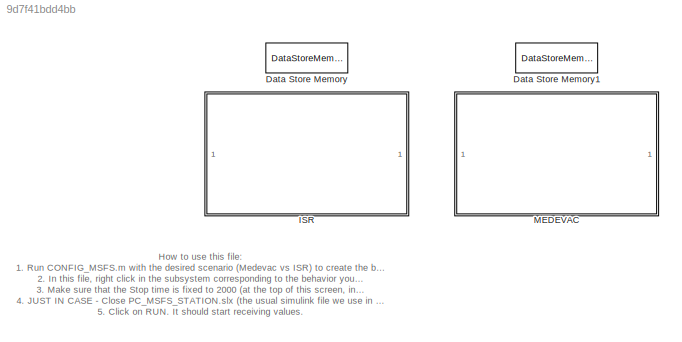
MODEL slx_9d7f41bdd4bb
KIND model
CONFIG AbsTol = auto
CONFIG EnableMultiTasking = off
CONFIG FixedStep = 0.03
CONFIG MaxStep = auto
CONFIG MinStep = auto
CONFIG RelTol = 1e-3
CONFIG SampleTimeConstraint = Unconstrained
CONFIG SolverName = FixedStepAuto
CONFIG StartTime = 0.0
CONFIG StopTime = inf
BLOCK [DataStoreMemory] Data Store Memory
  DataStoreName = MODEL
  InitialValue = MODEL_INI
  OutDataTypeStr = Bus: MODEL_Bus
  ReadBeforeWriteMsg = warning
  ShowAdditionalParam = off
  WriteAfterReadMsg = warning
  WriteAfterWriteMsg = warning
BLOCK [DataStoreMemory] Data Store Memory1
  DataStoreName = CONTROL
  InitialValue = CONTROL_INI
  OutDataTypeStr = Bus: CONTROL_Bus
  ReadBeforeWriteMsg = warning
  ShowAdditionalParam = off
  WriteAfterReadMsg = warning
  WriteAfterWriteMsg = warning
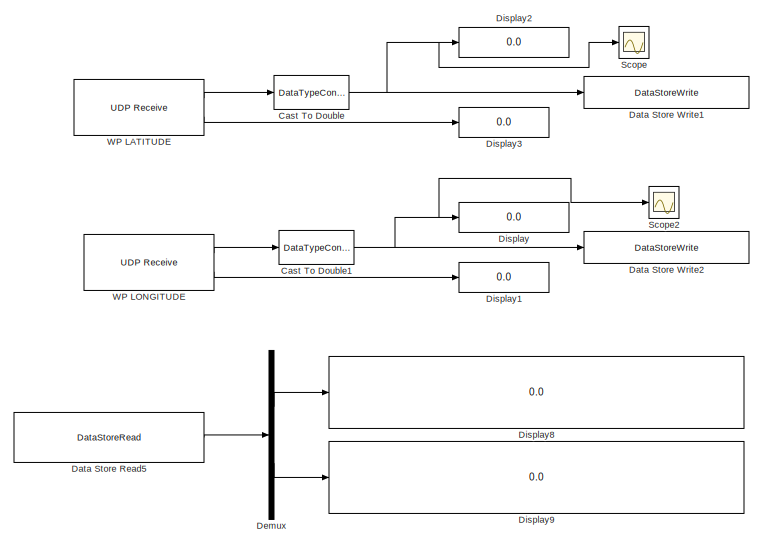
[diagram: ISR - part 1/3, top center region]
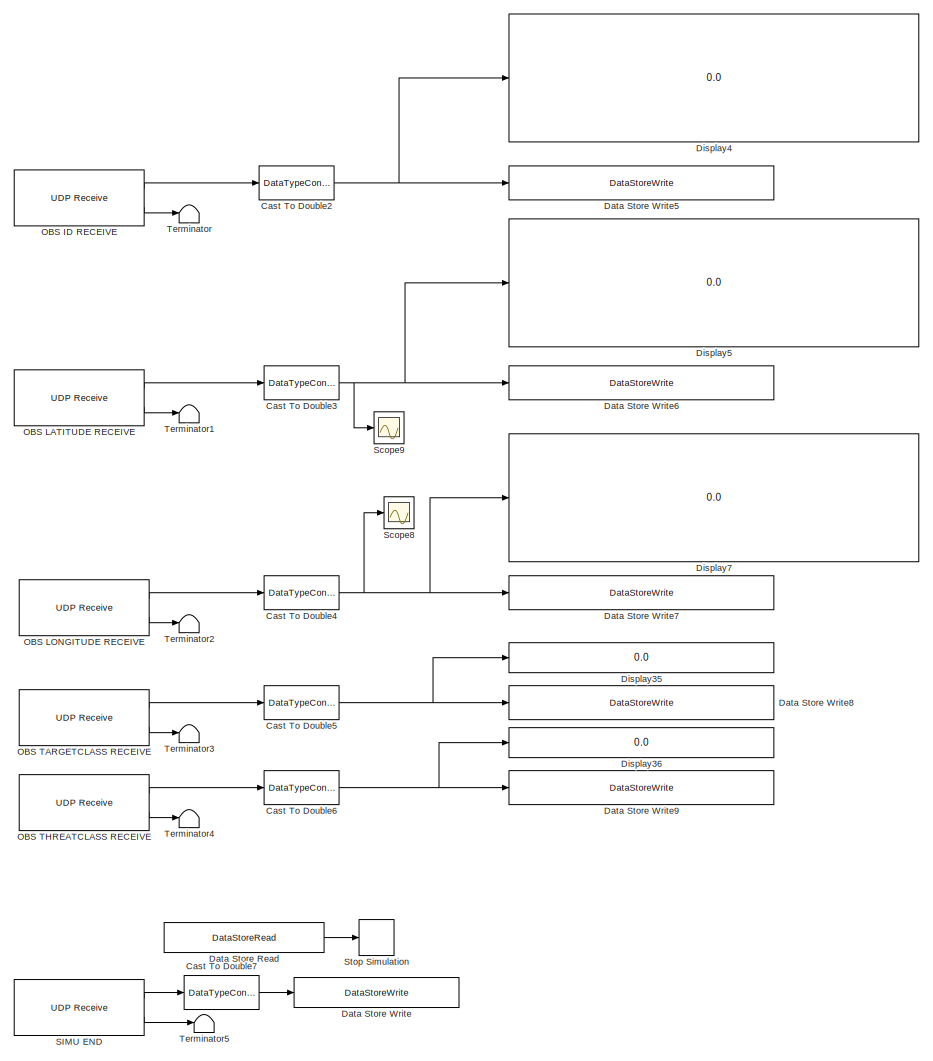
[diagram: ISR - part 2/3, left side, full height]
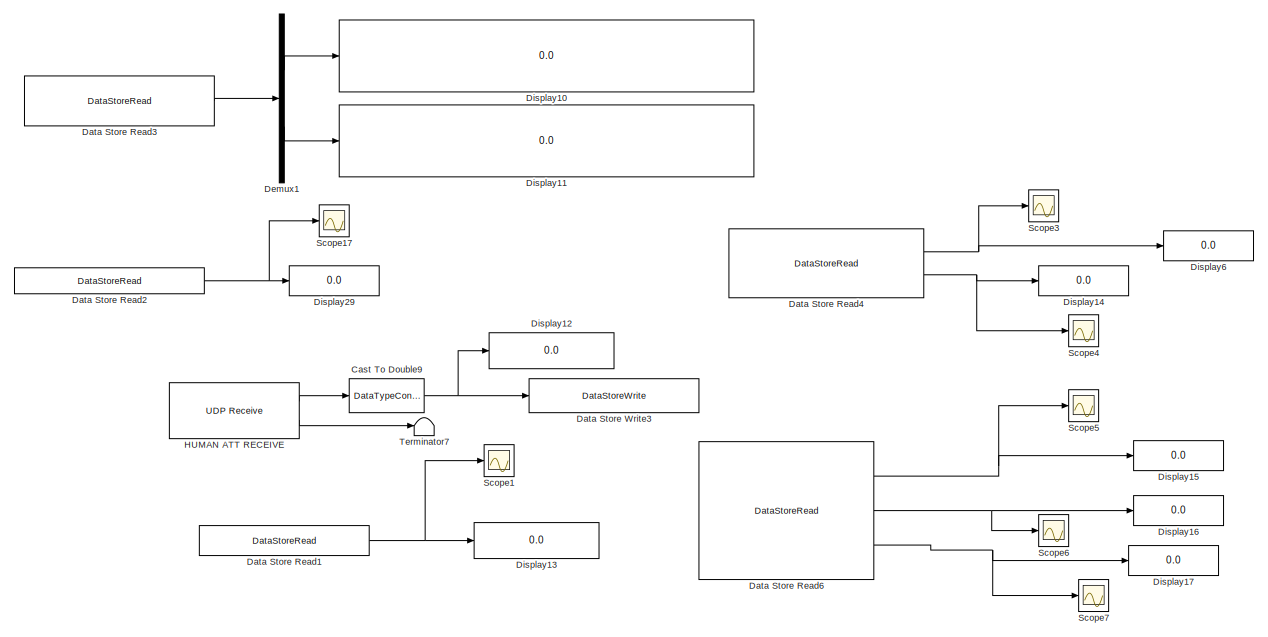
[diagram: ISR - part 3/3, bottom right region]
BLOCK [SubSystem] ISR
  Commented = on
  Ports = []
  RequestExecContextInheritance = off
BLOCK [DataTypeConversion] ISR/Cast To Double
  OutDataTypeStr = double
  RndMeth = Floor
  SaturateOnIntegerOverflow = off
BLOCK [DataTypeConversion] ISR/Cast To Double1
  OutDataTypeStr = double
  RndMeth = Floor
  SaturateOnIntegerOverflow = off
BLOCK [DataTypeConversion] ISR/Cast To Double2
  OutDataTypeStr = double
  RndMeth = Floor
  SaturateOnIntegerOverflow = off
BLOCK [DataTypeConversion] ISR/Cast To Double3
  OutDataTypeStr = double
  RndMeth = Floor
  SaturateOnIntegerOverflow = off
BLOCK [DataTypeConversion] ISR/Cast To Double4
  OutDataTypeStr = double
  RndMeth = Floor
  SaturateOnIntegerOverflow = off
BLOCK [DataTypeConversion] ISR/Cast To Double5
  OutDataTypeStr = double
  RndMeth = Floor
  SaturateOnIntegerOverflow = off
BLOCK [DataTypeConversion] ISR/Cast To Double6
  OutDataTypeStr = double
  RndMeth = Floor
  SaturateOnIntegerOverflow = off
BLOCK [DataTypeConversion] ISR/Cast To Double7
  OutDataTypeStr = double
  RndMeth = Floor
  SaturateOnIntegerOverflow = off
BLOCK [DataTypeConversion] ISR/Cast To Double9
  OutDataTypeStr = double
  RndMeth = Floor
  SaturateOnIntegerOverflow = off
BLOCK [DataStoreRead] ISR/Data Store Read
  DataStoreElements = CONTROL.TARGET.SIMU_END
  DataStoreName = CONTROL
  IndexOptions = Index vector (dialog)
  Indices = 1
  OutputSizes = 1
  Ports = [0, 1]
BLOCK [DataStoreRead] ISR/Data Store Read1
  DataStoreElements = MODEL.STATE(8,1)
  DataStoreName = MODEL
  IndexOptions = Index vector (dialog)
  Indices = 1
  OutputSizes = 1
  Ports = [0, 1]
BLOCK [DataStoreRead] ISR/Data Store Read2
  DataStoreElements = CONTROL.PARAM.FLIGHT_STATUS
  DataStoreName = CONTROL
  IndexOptions = Index vector (dialog)
  Indices = 1
  OutputSizes = 1
  Ports = [0, 1]
BLOCK [DataStoreRead] ISR/Data Store Read3
  DataStoreElements = CONTROL.PARAM.CBF_PSI(:,:)
  DataStoreName = CONTROL
  IndexOptions = Index vector (dialog)
  Indices = 1
  OutputSizes = 1
  Ports = [0, 1]
BLOCK [DataStoreRead] ISR/Data Store Read4
  DataStoreElements = CONTROL.PARAM.CBF_CONST#CONTROL.PARAM.CBF_CONST_ATT
  DataStoreName = CONTROL
  IndexOptions = Index vector (dialog)
  Indices = 1
  OutputSizes = 1
  Ports = [0, 2]
BLOCK [DataStoreRead] ISR/Data Store Read5
  DataStoreElements = CONTROL.PARAM.CBF_H(:,:)
  DataStoreName = CONTROL
  IndexOptions = Index vector (dialog)
  Indices = 1
  OutputSizes = 1
  Ports = [0, 1]
BLOCK [DataStoreRead] ISR/Data Store Read6
  DataStoreElements = MODEL.AUX.ALPHA_DOT#MODEL.AUX.ALPHA#MODEL.AUX.PATH_FOLLOWED
  DataStoreName = MODEL
  IndexOptions = Index vector (dialog)
  Indices = 1
  OutputSizes = 1
  Ports = [0, 3]
BLOCK [DataStoreWrite] ISR/Data Store Write
  DataStoreElements = CONTROL.TARGET.SIMU_END
  DataStoreName = CONTROL
  IndexOptions = Index vector (dialog)
  Indices = 1
  OutputSizes = 1
  Ports = [1]
BLOCK [DataStoreWrite] ISR/Data Store Write1
  DataStoreElements = CONTROL.TARGET.LATITUDE
  DataStoreName = CONTROL
  IndexOptions = Index vector (dialog)
  Indices = 1
  OutputSizes = 1
  Ports = [1]
BLOCK [DataStoreWrite] ISR/Data Store Write2
  DataStoreElements = CONTROL.TARGET.LONGITUDE
  DataStoreName = CONTROL
  IndexOptions = Index vector (dialog)
  Indices = 1
  OutputSizes = 1
  Ports = [1]
BLOCK [DataStoreWrite] ISR/Data Store Write3
  DataStoreElements = MODEL.INPUT.ATT_VALUE
  DataStoreName = MODEL
  IndexOptions = Index vector (dialog)
  Indices = 1
  OutputSizes = 1
  Ports = [1]
BLOCK [DataStoreWrite] ISR/Data Store Write5
  DataStoreElements = CONTROL.TARGET.OBSTACLE_ID(:,:)
  DataStoreName = CONTROL
  IndexOptions = Index vector (dialog)
  Indices = 1
  OutputSizes = 1
  Ports = [1]
BLOCK [DataStoreWrite] ISR/Data Store Write6
  DataStoreElements = CONTROL.TARGET.OBSTACLE_LATITUDE(:,:)
  DataStoreName = CONTROL
  IndexOptions = Index vector (dialog)
  Indices = 1
  OutputSizes = 1
  Ports = [1]
BLOCK [DataStoreWrite] ISR/Data Store Write7
  DataStoreElements = CONTROL.TARGET.OBSTACLE_LONGITUDE(:,:)
  DataStoreName = CONTROL
  IndexOptions = Index vector (dialog)
  Indices = 1
  OutputSizes = 1
  Ports = [1]
BLOCK [DataStoreWrite] ISR/Data Store Write8
  DataStoreElements = CONTROL.TARGET.OBSTACLE_TARGETCLASS(:,:)
  DataStoreName = CONTROL
  IndexOptions = Index vector (dialog)
  Indices = 1
  OutputSizes = 1
  Ports = [1]
BLOCK [DataStoreWrite] ISR/Data Store Write9
  DataStoreElements = CONTROL.TARGET.OBSTACLE_THREATCLASS(:,:)
  DataStoreName = CONTROL
  IndexOptions = Index vector (dialog)
  Indices = 1
  OutputSizes = 1
  Ports = [1]
BLOCK [Demux] ISR/Demux
  Outputs = 2
  Ports = [1, 2]
BLOCK [Demux] ISR/Demux1
  Outputs = 2
  Ports = [1, 2]
BLOCK [Display] ISR/Display
  Decimation = 1
  Format = long
  Ports = [1]
BLOCK [Display] ISR/Display1
  Decimation = 1
  Ports = [1]
BLOCK [Display] ISR/Display10
  Decimation = 1
  Ports = [1]
BLOCK [Display] ISR/Display11
  Decimation = 1
  Ports = [1]
BLOCK [Display] ISR/Display12
  Decimation = 1
  Ports = [1]
BLOCK [Display] ISR/Display13
  Decimation = 1
  Format = long
  Ports = [1]
BLOCK [Display] ISR/Display14
  Decimation = 1
  Ports = [1]
BLOCK [Display] ISR/Display15
  Decimation = 1
  Ports = [1]
BLOCK [Display] ISR/Display16
  Decimation = 1
  Ports = [1]
BLOCK [Display] ISR/Display17
  Decimation = 1
  Ports = [1]
BLOCK [Display] ISR/Display2
  Decimation = 1
  Format = long
  Ports = [1]
BLOCK [Display] ISR/Display29
  Decimation = 1
  Ports = [1]
BLOCK [Display] ISR/Display3
  Decimation = 1
  Ports = [1]
BLOCK [Display] ISR/Display35
  Decimation = 1
  Ports = [1]
BLOCK [Display] ISR/Display36
  Decimation = 1
  Ports = [1]
BLOCK [Display] ISR/Display4
  Decimation = 1
  Format = long
  Ports = [1]
BLOCK [Display] ISR/Display5
  Decimation = 1
  Format = long
  Ports = [1]
BLOCK [Display] ISR/Display6
  Decimation = 1
  Ports = [1]
BLOCK [Display] ISR/Display7
  Decimation = 1
  Format = long
  Ports = [1]
BLOCK [Display] ISR/Display8
  Decimation = 1
  Ports = [1]
BLOCK [Display] ISR/Display9
  Decimation = 1
  Ports = [1]
BLOCK [Reference] ISR/HUMAN ATT RECEIVE  REF=instrumentlib/UDP Receive
  Ports = [0, 2]
  SourceBlock = instrumentlib/UDP Receive
  SourceProductBaseCode = IC
  SourceType = UDP Receive
BLOCK [Reference] ISR/OBS ID RECEIVE  REF=instrumentlib/UDP Receive
  Ports = [0, 2]
  SourceBlock = instrumentlib/UDP Receive
  SourceProductBaseCode = IC
  SourceType = UDP Receive
BLOCK [Reference] ISR/OBS LATITUDE RECEIVE  REF=instrumentlib/UDP Receive
  Ports = [0, 2]
  SourceBlock = instrumentlib/UDP Receive
  SourceProductBaseCode = IC
  SourceType = UDP Receive
BLOCK [Reference] ISR/OBS LONGITUDE RECEIVE  REF=instrumentlib/UDP Receive
  Ports = [0, 2]
  SourceBlock = instrumentlib/UDP Receive
  SourceProductBaseCode = IC
  SourceType = UDP Receive
BLOCK [Reference] ISR/OBS TARGETCLASS RECEIVE  REF=instrumentlib/UDP Receive
  Ports = [0, 2]
  SourceBlock = instrumentlib/UDP Receive
  SourceProductBaseCode = IC
  SourceType = UDP Receive
BLOCK [Reference] ISR/OBS THREATCLASS RECEIVE  REF=instrumentlib/UDP Receive
  Ports = [0, 2]
  SourceBlock = instrumentlib/UDP Receive
  SourceProductBaseCode = IC
  SourceType = UDP Receive
BLOCK [Reference] ISR/SIMU END  REF=instrumentlib/UDP Receive
  Ports = [0, 2]
  SourceBlock = instrumentlib/UDP Receive
  SourceProductBaseCode = IC
  SourceType = UDP Receive
BLOCK [Scope] ISR/Scope
  Floating = off
  NumInputPorts = 1
  Ports = [1]
  ScopeSpecificationString = Simulink.scopes.TimeScopeBlockCfg('CurrentConfiguration', extmgr.ConfigurationSet(extmgr.Configuration('Core','General UI',true),extmgr.Configuration('Core','Source UI',true),extmgr.Configuration('Sources','WiredSimulink',true,'DataLoggingVariableName','ScopeData1'),extmgr.Configuration('Visuals','Time Domain',true),extmgr.Configuration('Tools','Plot Navigation',true),extmgr.Configuration('Tools',...<+40ch>
BLOCK [Scope] ISR/Scope1
  Floating = off
  NumInputPorts = 1
  Ports = [1]
  ScopeSpecificationString = Simulink.scopes.TimeScopeBlockCfg('CurrentConfiguration', extmgr.ConfigurationSet(extmgr.Configuration('Core','General UI',true),extmgr.Configuration('Core','Source UI',true),extmgr.Configuration('Sources','WiredSimulink',true,'DataLoggingVariableName','ScopeData2'),extmgr.Configuration('Visuals','Time Domain',true,'SerializedDisplays',{struct('MinYLimReal','-0.5','MaxYLimReal','4.5','YLabelReal',...<+1379ch>
BLOCK [Scope] ISR/Scope17
  Floating = off
  NumInputPorts = 1
  Ports = [1]
  ScopeSpecificationString = Simulink.scopes.TimeScopeBlockCfg('CurrentConfiguration', extmgr.ConfigurationSet(extmgr.Configuration('Core','General UI',true),extmgr.Configuration('Core','Source UI',true),extmgr.Configuration('Sources','WiredSimulink',true,'DataLoggingVariableName','ScopeData3'),extmgr.Configuration('Visuals','Time Domain',true,'SerializedDisplays',{struct('MinYLimReal','-0.25','MaxYLimReal','2.25','YLabelReal...<+1401ch>
BLOCK [Scope] ISR/Scope2
  Floating = off
  NumInputPorts = 1
  Ports = [1]
  ScopeSpecificationString = Simulink.scopes.TimeScopeBlockCfg('CurrentConfiguration', extmgr.ConfigurationSet(extmgr.Configuration('Core','General UI',true),extmgr.Configuration('Core','Source UI',true),extmgr.Configuration('Sources','WiredSimulink',true,'DataLoggingVariableName','ScopeData4'),extmgr.Configuration('Visuals','Time Domain',true),extmgr.Configuration('Tools','Plot Navigation',true),extmgr.Configuration('Tools',...<+40ch>
BLOCK [Scope] ISR/Scope3
  Floating = off
  NumInputPorts = 1
  Ports = [1]
  ScopeSpecificationString = Simulink.scopes.TimeScopeBlockCfg('CurrentConfiguration', extmgr.ConfigurationSet(extmgr.Configuration('Core','General UI',true),extmgr.Configuration('Core','Source UI',true),extmgr.Configuration('Sources','WiredSimulink',true,'DataLoggingVariableName','ScopeData5'),extmgr.Configuration('Visuals','Time Domain',true,'SerializedDisplays',{struct('MinYLimReal','-0.25','MaxYLimReal','2.25','YLabelReal...<+1401ch>
BLOCK [Scope] ISR/Scope4
  Floating = off
  NumInputPorts = 1
  Ports = [1]
  ScopeSpecificationString = Simulink.scopes.TimeScopeBlockCfg('CurrentConfiguration', extmgr.ConfigurationSet(extmgr.Configuration('Core','General UI',true),extmgr.Configuration('Core','Source UI',true),extmgr.Configuration('Sources','WiredSimulink',true,'DataLoggingVariableName','ScopeData6'),extmgr.Configuration('Visuals','Time Domain',true,'SerializedDisplays',{struct('MinYLimReal','1.88456','MaxYLimReal','2.17145','YLabe...<+1419ch>
BLOCK [Scope] ISR/Scope5
  Floating = off
  NumInputPorts = 1
  Ports = [1]
  ScopeSpecificationString = Simulink.scopes.TimeScopeBlockCfg('CurrentConfiguration', extmgr.ConfigurationSet(extmgr.Configuration('Core','General UI',true),extmgr.Configuration('Core','Source UI',true),extmgr.Configuration('Sources','WiredSimulink',true,'DataLoggingVariableName','ScopeData7'),extmgr.Configuration('Visuals','Time Domain',true,'SerializedDisplays',{struct('MinYLimReal','-0.00104','MaxYLimReal','0.00027','YLab...<+1421ch>
BLOCK [Scope] ISR/Scope6
  Floating = off
  NumInputPorts = 1
  Ports = [1]
  ScopeSpecificationString = Simulink.scopes.TimeScopeBlockCfg('CurrentConfiguration', extmgr.ConfigurationSet(extmgr.Configuration('Core','General UI',true),extmgr.Configuration('Core','Source UI',true),extmgr.Configuration('Sources','WiredSimulink',true,'DataLoggingVariableName','ScopeData8'),extmgr.Configuration('Visuals','Time Domain',true,'SerializedDisplays',{struct('MinYLimReal','0.99762','MaxYLimReal','1.00525','YLabe...<+1448ch>
BLOCK [Scope] ISR/Scope7
  Floating = off
  NumInputPorts = 1
  Ports = [1]
  ScopeSpecificationString = Simulink.scopes.TimeScopeBlockCfg('CurrentConfiguration', extmgr.ConfigurationSet(extmgr.Configuration('Core','General UI',true),extmgr.Configuration('Core','Source UI',true),extmgr.Configuration('Sources','WiredSimulink',true,'DataLoggingVariableName','ScopeData9'),extmgr.Configuration('Visuals','Time Domain',true,'SerializedDisplays',{struct('MinYLimReal','1.99582','MaxYLimReal','2.00215','YLabe...<+1448ch>
BLOCK [Scope] ISR/Scope8
  Floating = off
  NumInputPorts = 1
  Ports = [1]
  ScopeSpecificationString = Simulink.scopes.TimeScopeBlockCfg('CurrentConfiguration', extmgr.ConfigurationSet(extmgr.Configuration('Core','General UI',true),extmgr.Configuration('Core','Source UI',true),extmgr.Configuration('Sources','WiredSimulink',true,'DataLoggingVariableName','OBS_LONG','DataLogging',true,'DataLoggingSaveFormat','Structure'),extmgr.Configuration('Visuals','Time Domain',true,'SerializedDisplays',{struct('...<+1910ch>
BLOCK [Scope] ISR/Scope9
  Floating = off
  NumInputPorts = 1
  Ports = [1]
  ScopeSpecificationString = Simulink.scopes.TimeScopeBlockCfg('CurrentConfiguration', extmgr.ConfigurationSet(extmgr.Configuration('Core','General UI',true),extmgr.Configuration('Core','Source UI',true),extmgr.Configuration('Sources','WiredSimulink',true,'DataLoggingVariableName','OBS_LAT','DataLogging',true,'DataLoggingSaveFormat','Structure'),extmgr.Configuration('Visuals','Time Domain',true,'SerializedDisplays',{struct('M...<+1846ch>
BLOCK [Stop] ISR/Stop Simulation
BLOCK [Terminator] ISR/Terminator
BLOCK [Terminator] ISR/Terminator1
BLOCK [Terminator] ISR/Terminator2
BLOCK [Terminator] ISR/Terminator3
BLOCK [Terminator] ISR/Terminator4
BLOCK [Terminator] ISR/Terminator5
BLOCK [Terminator] ISR/Terminator7
BLOCK [Reference] ISR/WP LATITUDE  REF=instrumentlib/UDP Receive
  Ports = [0, 2]
  SourceBlock = instrumentlib/UDP Receive
  SourceProductBaseCode = IC
  SourceType = UDP Receive
BLOCK [Reference] ISR/WP LONGITUDE  REF=instrumentlib/UDP Receive
  Ports = [0, 2]
  SourceBlock = instrumentlib/UDP Receive
  SourceProductBaseCode = IC
  SourceType = UDP Receive
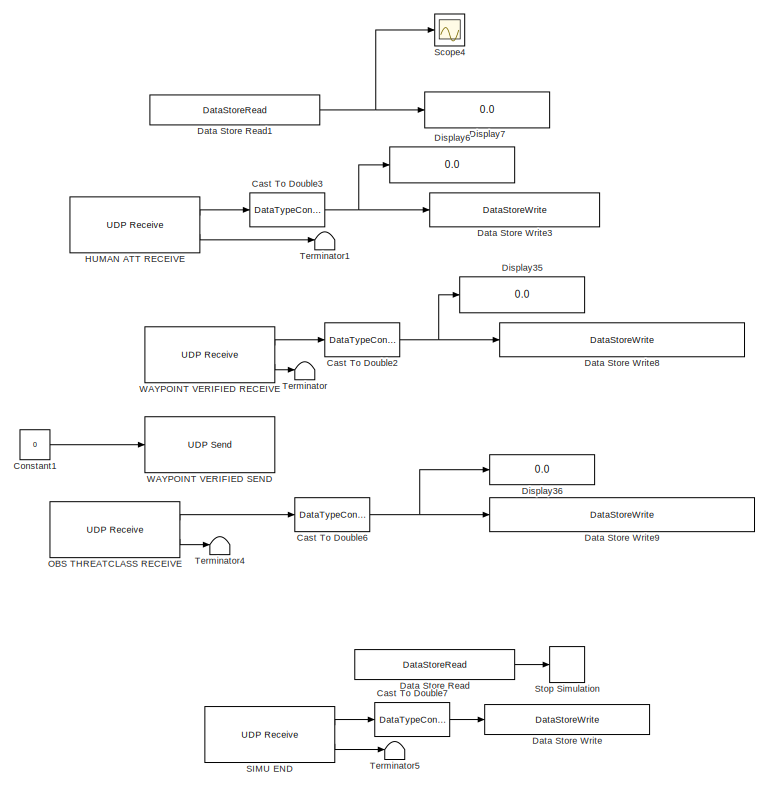
[diagram: MEDEVAC - part 1/2, left side, full height]
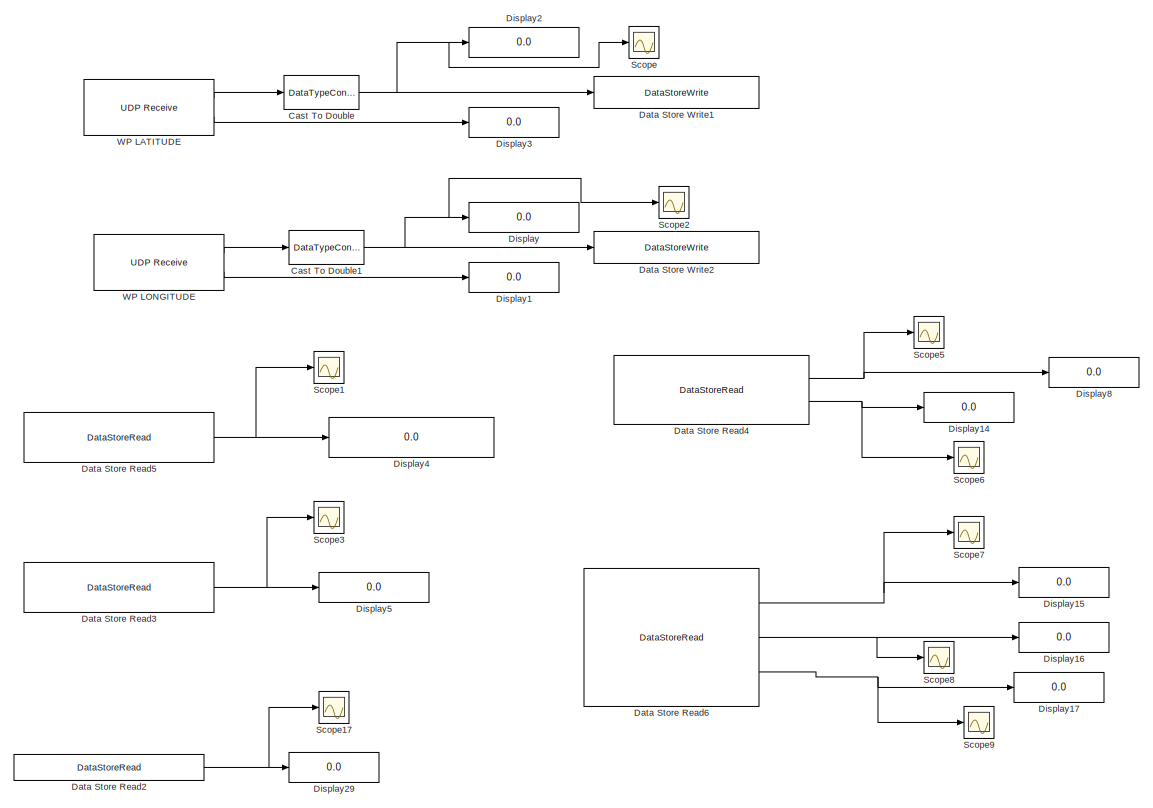
[diagram: MEDEVAC - part 2/2, right side, full height]
BLOCK [SubSystem] MEDEVAC
  Ports = []
  RequestExecContextInheritance = off
BLOCK [DataTypeConversion] MEDEVAC/Cast To Double
  OutDataTypeStr = double
  RndMeth = Floor
  SaturateOnIntegerOverflow = off
BLOCK [DataTypeConversion] MEDEVAC/Cast To Double1
  OutDataTypeStr = double
  RndMeth = Floor
  SaturateOnIntegerOverflow = off
BLOCK [DataTypeConversion] MEDEVAC/Cast To Double2
  OutDataTypeStr = double
  RndMeth = Floor
  SaturateOnIntegerOverflow = off
BLOCK [DataTypeConversion] MEDEVAC/Cast To Double3
  OutDataTypeStr = double
  RndMeth = Floor
  SaturateOnIntegerOverflow = off
BLOCK [DataTypeConversion] MEDEVAC/Cast To Double6
  OutDataTypeStr = double
  RndMeth = Floor
  SaturateOnIntegerOverflow = off
BLOCK [DataTypeConversion] MEDEVAC/Cast To Double7
  OutDataTypeStr = double
  RndMeth = Floor
  SaturateOnIntegerOverflow = off
BLOCK [Constant] MEDEVAC/Constant1
  Commented = on
  SampleTime = -1
  Value = 0
BLOCK [DataStoreRead] MEDEVAC/Data Store Read
  DataStoreElements = CONTROL.TARGET.SIMU_END
  DataStoreName = CONTROL
  IndexOptions = Index vector (dialog)
  Indices = 1
  OutputSizes = 1
  Ports = [0, 1]
BLOCK [DataStoreRead] MEDEVAC/Data Store Read1
  DataStoreElements = MODEL.STATE(8,1)
  DataStoreName = MODEL
  IndexOptions = Index vector (dialog)
  Indices = 1
  OutputSizes = 1
  Ports = [0, 1]
BLOCK [DataStoreRead] MEDEVAC/Data Store Read2
  DataStoreElements = CONTROL.PARAM.FLIGHT_STATUS
  DataStoreName = CONTROL
  IndexOptions = Index vector (dialog)
  Indices = 1
  OutputSizes = 1
  Ports = [0, 1]
BLOCK [DataStoreRead] MEDEVAC/Data Store Read3
  DataStoreElements = CONTROL.PARAM.CBF_PSI(:,:)
  DataStoreName = CONTROL
  IndexOptions = Index vector (dialog)
  Indices = 1
  OutputSizes = 1
  Ports = [0, 1]
BLOCK [DataStoreRead] MEDEVAC/Data Store Read4
  DataStoreElements = CONTROL.PARAM.CBF_CONST#CONTROL.PARAM.CBF_CONST_ATT
  DataStoreName = CONTROL
  IndexOptions = Index vector (dialog)
  Indices = 1
  OutputSizes = 1
  Ports = [0, 2]
BLOCK [DataStoreRead] MEDEVAC/Data Store Read5
  DataStoreElements = CONTROL.PARAM.CBF_H(:,:)
  DataStoreName = CONTROL
  IndexOptions = Index vector (dialog)
  Indices = 1
  OutputSizes = 1
  Ports = [0, 1]
BLOCK [DataStoreRead] MEDEVAC/Data Store Read6
  DataStoreElements = MODEL.AUX.ALPHA_DOT#MODEL.AUX.ALPHA#MODEL.AUX.PATH_FOLLOWED
  DataStoreName = MODEL
  IndexOptions = Index vector (dialog)
  Indices = 1
  OutputSizes = 1
  Ports = [0, 3]
BLOCK [DataStoreWrite] MEDEVAC/Data Store Write
  DataStoreElements = CONTROL.TARGET.SIMU_END
  DataStoreName = CONTROL
  IndexOptions = Index vector (dialog)
  Indices = 1
  OutputSizes = 1
  Ports = [1]
BLOCK [DataStoreWrite] MEDEVAC/Data Store Write1
  DataStoreElements = CONTROL.TARGET.LATITUDE
  DataStoreName = CONTROL
  IndexOptions = Index vector (dialog)
  Indices = 1
  OutputSizes = 1
  Ports = [1]
BLOCK [DataStoreWrite] MEDEVAC/Data Store Write2
  DataStoreElements = CONTROL.TARGET.LONGITUDE
  DataStoreName = CONTROL
  IndexOptions = Index vector (dialog)
  Indices = 1
  OutputSizes = 1
  Ports = [1]
BLOCK [DataStoreWrite] MEDEVAC/Data Store Write3
  DataStoreElements = MODEL.INPUT.ATT_VALUE
  DataStoreName = MODEL
  IndexOptions = Index vector (dialog)
  Indices = 1
  OutputSizes = 1
  Ports = [1]
BLOCK [DataStoreWrite] MEDEVAC/Data Store Write8
  DataStoreElements = CONTROL.TARGET.WAYPOINT_VERIFIED
  DataStoreName = CONTROL
  IndexOptions = Index vector (dialog)
  Indices = 1
  OutputSizes = 1
  Ports = [1]
BLOCK [DataStoreWrite] MEDEVAC/Data Store Write9
  DataStoreElements = CONTROL.TARGET.OBSTACLE_THREATCLASS(:,:)
  DataStoreName = CONTROL
  IndexOptions = Index vector (dialog)
  Indices = 1
  OutputSizes = 1
  Ports = [1]
BLOCK [Display] MEDEVAC/Display
  Decimation = 1
  Format = long
  Ports = [1]
BLOCK [Display] MEDEVAC/Display1
  Decimation = 1
  Ports = [1]
BLOCK [Display] MEDEVAC/Display14
  Decimation = 1
  Ports = [1]
BLOCK [Display] MEDEVAC/Display15
  Decimation = 1
  Ports = [1]
BLOCK [Display] MEDEVAC/Display16
  Decimation = 1
  Ports = [1]
BLOCK [Display] MEDEVAC/Display17
  Decimation = 1
  Ports = [1]
BLOCK [Display] MEDEVAC/Display2
  Decimation = 1
  Format = long
  Ports = [1]
BLOCK [Display] MEDEVAC/Display29
  Decimation = 1
  Ports = [1]
BLOCK [Display] MEDEVAC/Display3
  Decimation = 1
  Ports = [1]
BLOCK [Display] MEDEVAC/Display35
  Decimation = 1
  Ports = [1]
BLOCK [Display] MEDEVAC/Display36
  Decimation = 1
  Ports = [1]
BLOCK [Display] MEDEVAC/Display4
  Decimation = 1
  Format = long
  Ports = [1]
BLOCK [Display] MEDEVAC/Display5
  Decimation = 1
  Format = long
  Ports = [1]
BLOCK [Display] MEDEVAC/Display6
  Decimation = 1
  Ports = [1]
BLOCK [Display] MEDEVAC/Display7
  Decimation = 1
  Format = long
  Ports = [1]
BLOCK [Display] MEDEVAC/Display8
  Decimation = 1
  Ports = [1]
BLOCK [Reference] MEDEVAC/HUMAN ATT RECEIVE  REF=instrumentlib/UDP Receive
  Ports = [0, 2]
  SourceBlock = instrumentlib/UDP Receive
  SourceProductBaseCode = IC
  SourceType = UDP Receive
BLOCK [Reference] MEDEVAC/OBS THREATCLASS RECEIVE  REF=instrumentlib/UDP Receive
  Ports = [0, 2]
  SourceBlock = instrumentlib/UDP Receive
  SourceProductBaseCode = IC
  SourceType = UDP Receive
BLOCK [Reference] MEDEVAC/SIMU END  REF=instrumentlib/UDP Receive
  Ports = [0, 2]
  SourceBlock = instrumentlib/UDP Receive
  SourceProductBaseCode = IC
  SourceType = UDP Receive
BLOCK [Scope] MEDEVAC/Scope
  Floating = off
  NumInputPorts = 1
  Ports = [1]
  ScopeSpecificationString = Simulink.scopes.TimeScopeBlockCfg('CurrentConfiguration', extmgr.ConfigurationSet(extmgr.Configuration('Core','General UI',true),extmgr.Configuration('Core','Source UI',true),extmgr.Configuration('Sources','WiredSimulink',true,'DataLoggingVariableName','ScopeData10'),extmgr.Configuration('Visuals','Time Domain',true),extmgr.Configuration('Tools','Plot Navigation',true),extmgr.Configuration('Tools'...<+41ch>
BLOCK [Scope] MEDEVAC/Scope1
  Floating = off
  NumInputPorts = 1
  Ports = [1]
  ScopeSpecificationString = Simulink.scopes.TimeScopeBlockCfg('CurrentConfiguration', extmgr.ConfigurationSet(extmgr.Configuration('Core','General UI',true),extmgr.Configuration('Core','Source UI',true),extmgr.Configuration('Sources','WiredSimulink',true,'DataLoggingVariableName','ScopeData11'),extmgr.Configuration('Visuals','Time Domain',true),extmgr.Configuration('Tools','Plot Navigation',true),extmgr.Configuration('Tools'...<+41ch>
BLOCK [Scope] MEDEVAC/Scope17
  Floating = off
  NumInputPorts = 1
  Ports = [1]
  ScopeSpecificationString = Simulink.scopes.TimeScopeBlockCfg('CurrentConfiguration', extmgr.ConfigurationSet(extmgr.Configuration('Core','General UI',true),extmgr.Configuration('Core','Source UI',true),extmgr.Configuration('Sources','WiredSimulink',true,'DataLoggingVariableName','ScopeData12'),extmgr.Configuration('Visuals','Time Domain',true,'SerializedDisplays',{struct('MinYLimReal','-0.25','MaxYLimReal','2.25','YLabelRea...<+1402ch>
BLOCK [Scope] MEDEVAC/Scope2
  Floating = off
  NumInputPorts = 1
  Ports = [1]
  ScopeSpecificationString = Simulink.scopes.TimeScopeBlockCfg('CurrentConfiguration', extmgr.ConfigurationSet(extmgr.Configuration('Core','General UI',true),extmgr.Configuration('Core','Source UI',true),extmgr.Configuration('Sources','WiredSimulink',true,'DataLoggingVariableName','ScopeData13'),extmgr.Configuration('Visuals','Time Domain',true),extmgr.Configuration('Tools','Plot Navigation',true),extmgr.Configuration('Tools'...<+41ch>
BLOCK [Scope] MEDEVAC/Scope3
  Floating = off
  NumInputPorts = 1
  Ports = [1]
  ScopeSpecificationString = Simulink.scopes.TimeScopeBlockCfg('CurrentConfiguration', extmgr.ConfigurationSet(extmgr.Configuration('Core','General UI',true),extmgr.Configuration('Core','Source UI',true),extmgr.Configuration('Sources','WiredSimulink',true,'DataLoggingVariableName','ScopeData14'),extmgr.Configuration('Visuals','Time Domain',true),extmgr.Configuration('Tools','Plot Navigation',true),extmgr.Configuration('Tools'...<+41ch>
BLOCK [Scope] MEDEVAC/Scope4
  Floating = off
  NumInputPorts = 1
  Ports = [1]
  ScopeSpecificationString = Simulink.scopes.TimeScopeBlockCfg('CurrentConfiguration', extmgr.ConfigurationSet(extmgr.Configuration('Core','General UI',true),extmgr.Configuration('Core','Source UI',true),extmgr.Configuration('Sources','WiredSimulink',true,'DataLoggingVariableName','ScopeData15'),extmgr.Configuration('Visuals','Time Domain',true,'SerializedDisplays',{struct('MinYLimReal','-0.69557','MaxYLimReal','1.51159','YLa...<+1449ch>
BLOCK [Scope] MEDEVAC/Scope5
  Floating = off
  NumInputPorts = 1
  Ports = [1]
  ScopeSpecificationString = Simulink.scopes.TimeScopeBlockCfg('CurrentConfiguration', extmgr.ConfigurationSet(extmgr.Configuration('Core','General UI',true),extmgr.Configuration('Core','Source UI',true),extmgr.Configuration('Sources','WiredSimulink',true,'DataLoggingVariableName','ScopeData16'),extmgr.Configuration('Visuals','Time Domain',true,'SerializedDisplays',{struct('MinYLimReal','-0.25','MaxYLimReal','2.25','YLabelRea...<+1402ch>
BLOCK [Scope] MEDEVAC/Scope6
  Floating = off
  NumInputPorts = 1
  Ports = [1]
  ScopeSpecificationString = Simulink.scopes.TimeScopeBlockCfg('CurrentConfiguration', extmgr.ConfigurationSet(extmgr.Configuration('Core','General UI',true),extmgr.Configuration('Core','Source UI',true),extmgr.Configuration('Sources','WiredSimulink',true,'DataLoggingVariableName','ScopeData17'),extmgr.Configuration('Visuals','Time Domain',true,'SerializedDisplays',{struct('MinYLimReal','1.88456','MaxYLimReal','2.17145','YLab...<+1402ch>
BLOCK [Scope] MEDEVAC/Scope7
  Floating = off
  NumInputPorts = 1
  Ports = [1]
  ScopeSpecificationString = Simulink.scopes.TimeScopeBlockCfg('CurrentConfiguration', extmgr.ConfigurationSet(extmgr.Configuration('Core','General UI',true),extmgr.Configuration('Core','Source UI',true),extmgr.Configuration('Sources','WiredSimulink',true,'DataLoggingVariableName','ScopeData18'),extmgr.Configuration('Visuals','Time Domain',true,'SerializedDisplays',{struct('MinYLimReal','-0.00104','MaxYLimReal','0.00027','YLa...<+1404ch>
BLOCK [Scope] MEDEVAC/Scope8
  Floating = off
  NumInputPorts = 1
  Ports = [1]
  ScopeSpecificationString = Simulink.scopes.TimeScopeBlockCfg('CurrentConfiguration', extmgr.ConfigurationSet(extmgr.Configuration('Core','General UI',true),extmgr.Configuration('Core','Source UI',true),extmgr.Configuration('Sources','WiredSimulink',true,'DataLoggingVariableName','ScopeData19'),extmgr.Configuration('Visuals','Time Domain',true,'SerializedDisplays',{struct('MinYLimReal','0.99762','MaxYLimReal','1.00525','YLab...<+1431ch>
BLOCK [Scope] MEDEVAC/Scope9
  Floating = off
  NumInputPorts = 1
  Ports = [1]
  ScopeSpecificationString = Simulink.scopes.TimeScopeBlockCfg('CurrentConfiguration', extmgr.ConfigurationSet(extmgr.Configuration('Core','General UI',true),extmgr.Configuration('Core','Source UI',true),extmgr.Configuration('Sources','WiredSimulink',true,'DataLoggingVariableName','ScopeData20'),extmgr.Configuration('Visuals','Time Domain',true,'SerializedDisplays',{struct('MinYLimReal','1.99582','MaxYLimReal','2.00215','YLab...<+1431ch>
BLOCK [Stop] MEDEVAC/Stop Simulation
BLOCK [Terminator] MEDEVAC/Terminator
BLOCK [Terminator] MEDEVAC/Terminator1
BLOCK [Terminator] MEDEVAC/Terminator4
BLOCK [Terminator] MEDEVAC/Terminator5
BLOCK [Reference] MEDEVAC/WAYPOINT VERIFIED RECEIVE  REF=instrumentlib/UDP Receive
  Ports = [0, 2]
  SourceBlock = instrumentlib/UDP Receive
  SourceProductBaseCode = IC
  SourceType = UDP Receive
BLOCK [Reference] MEDEVAC/WAYPOINT VERIFIED SEND  REF=instrumentlib/UDP Send
  Commented = on
  Ports = [1]
  SourceBlock = instrumentlib/UDP Send
  SourceProductBaseCode = IC
  SourceType = UDP Send
BLOCK [Reference] MEDEVAC/WP LATITUDE  REF=instrumentlib/UDP Receive
  Ports = [0, 2]
  SourceBlock = instrumentlib/UDP Receive
  SourceProductBaseCode = IC
  SourceType = UDP Receive
BLOCK [Reference] MEDEVAC/WP LONGITUDE  REF=instrumentlib/UDP Receive
  Ports = [0, 2]
  SourceBlock = instrumentlib/UDP Receive
  SourceProductBaseCode = IC
  SourceType = UDP Receive
ANNOTATION (root): How to use this file: 1. Run CONFIG_MSFS.m with the desired scenario (Medevac vs ISR) to create the buses appropiately 2. In this file, right click in the subsystem corresponding to the behavior you are not using and select "comment out" 3. Make sure that the Stop time is fixed to 2000 (at the top of this screen, in the tab) 4. JUST IN CASE - Close PC_MSFS_STATION.slx (the usual simulink file we u...<+73ch>
NET ISR/Cast To Double1:1 -> ISR/Data Store Write2:1, ISR/Display:1, ISR/Scope2:1
NET ISR/Cast To Double2:1 -> ISR/Data Store Write5:1, ISR/Display4:1
NET ISR/Cast To Double3:1 -> ISR/Data Store Write6:1, ISR/Display5:1, ISR/Scope9:1
NET ISR/Cast To Double4:1 -> ISR/Data Store Write7:1, ISR/Display7:1, ISR/Scope8:1
NET ISR/Cast To Double5:1 -> ISR/Data Store Write8:1, ISR/Display35:1
NET ISR/Cast To Double6:1 -> ISR/Data Store Write9:1, ISR/Display36:1
LINE ISR/Cast To Double7:1 -> ISR/Data Store Write:1
NET ISR/Cast To Double9:1 -> ISR/Data Store Write3:1, ISR/Display12:1
NET ISR/Cast To Double:1 -> ISR/Data Store Write1:1, ISR/Display2:1, ISR/Scope:1
NET ISR/Data Store Read1:1 -> ISR/Display13:1, ISR/Scope1:1
NET ISR/Data Store Read2:1 -> ISR/Display29:1, ISR/Scope17:1
LINE ISR/Data Store Read3:1 -> ISR/Demux1:1
NET ISR/Data Store Read4:1 -> ISR/Display6:1, ISR/Scope3:1
NET ISR/Data Store Read4:2 -> ISR/Display14:1, ISR/Scope4:1
LINE ISR/Data Store Read5:1 -> ISR/Demux:1
NET ISR/Data Store Read6:1 -> ISR/Display15:1, ISR/Scope5:1
NET ISR/Data Store Read6:2 -> ISR/Display16:1, ISR/Scope6:1
NET ISR/Data Store Read6:3 -> ISR/Display17:1, ISR/Scope7:1
LINE ISR/Data Store Read:1 -> ISR/Stop Simulation:1
LINE ISR/Demux1:1 -> ISR/Display10:1
LINE ISR/Demux1:2 -> ISR/Display11:1
LINE ISR/Demux:1 -> ISR/Display8:1
LINE ISR/Demux:2 -> ISR/Display9:1
LINE ISR/HUMAN ATT RECEIVE:1 -> ISR/Cast To Double9:1
LINE ISR/HUMAN ATT RECEIVE:2 -> ISR/Terminator7:1
LINE ISR/OBS ID RECEIVE:1 -> ISR/Cast To Double2:1
LINE ISR/OBS ID RECEIVE:2 -> ISR/Terminator:1
LINE ISR/OBS LATITUDE RECEIVE:1 -> ISR/Cast To Double3:1
LINE ISR/OBS LATITUDE RECEIVE:2 -> ISR/Terminator1:1
LINE ISR/OBS LONGITUDE RECEIVE:1 -> ISR/Cast To Double4:1
LINE ISR/OBS LONGITUDE RECEIVE:2 -> ISR/Terminator2:1
LINE ISR/OBS TARGETCLASS RECEIVE:1 -> ISR/Cast To Double5:1
LINE ISR/OBS TARGETCLASS RECEIVE:2 -> ISR/Terminator3:1
LINE ISR/OBS THREATCLASS RECEIVE:1 -> ISR/Cast To Double6:1
LINE ISR/OBS THREATCLASS RECEIVE:2 -> ISR/Terminator4:1
LINE ISR/SIMU END:1 -> ISR/Cast To Double7:1
LINE ISR/SIMU END:2 -> ISR/Terminator5:1
LINE ISR/WP LATITUDE:1 -> ISR/Cast To Double:1
LINE ISR/WP LATITUDE:2 -> ISR/Display3:1
LINE ISR/WP LONGITUDE:1 -> ISR/Cast To Double1:1
LINE ISR/WP LONGITUDE:2 -> ISR/Display1:1
NET MEDEVAC/Cast To Double1:1 -> MEDEVAC/Data Store Write2:1, MEDEVAC/Display:1, MEDEVAC/Scope2:1
NET MEDEVAC/Cast To Double2:1 -> MEDEVAC/Data Store Write8:1, MEDEVAC/Display35:1
NET MEDEVAC/Cast To Double3:1 -> MEDEVAC/Data Store Write3:1, MEDEVAC/Display6:1
NET MEDEVAC/Cast To Double6:1 -> MEDEVAC/Data Store Write9:1, MEDEVAC/Display36:1
LINE MEDEVAC/Cast To Double7:1 -> MEDEVAC/Data Store Write:1
NET MEDEVAC/Cast To Double:1 -> MEDEVAC/Data Store Write1:1, MEDEVAC/Display2:1, MEDEVAC/Scope:1
LINE MEDEVAC/Constant1:1 -> MEDEVAC/WAYPOINT VERIFIED SEND:1
NET MEDEVAC/Data Store Read1:1 -> MEDEVAC/Display7:1, MEDEVAC/Scope4:1
NET MEDEVAC/Data Store Read2:1 -> MEDEVAC/Display29:1, MEDEVAC/Scope17:1
NET MEDEVAC/Data Store Read3:1 -> MEDEVAC/Display5:1, MEDEVAC/Scope3:1
NET MEDEVAC/Data Store Read4:1 -> MEDEVAC/Display8:1, MEDEVAC/Scope5:1
NET MEDEVAC/Data Store Read4:2 -> MEDEVAC/Display14:1, MEDEVAC/Scope6:1
NET MEDEVAC/Data Store Read5:1 -> MEDEVAC/Display4:1, MEDEVAC/Scope1:1
NET MEDEVAC/Data Store Read6:1 -> MEDEVAC/Display15:1, MEDEVAC/Scope7:1
NET MEDEVAC/Data Store Read6:2 -> MEDEVAC/Display16:1, MEDEVAC/Scope8:1
NET MEDEVAC/Data Store Read6:3 -> MEDEVAC/Display17:1, MEDEVAC/Scope9:1
LINE MEDEVAC/Data Store Read:1 -> MEDEVAC/Stop Simulation:1
LINE MEDEVAC/HUMAN ATT RECEIVE:1 -> MEDEVAC/Cast To Double3:1
LINE MEDEVAC/HUMAN ATT RECEIVE:2 -> MEDEVAC/Terminator1:1
LINE MEDEVAC/OBS THREATCLASS RECEIVE:1 -> MEDEVAC/Cast To Double6:1
LINE MEDEVAC/OBS THREATCLASS RECEIVE:2 -> MEDEVAC/Terminator4:1
LINE MEDEVAC/SIMU END:1 -> MEDEVAC/Cast To Double7:1
LINE MEDEVAC/SIMU END:2 -> MEDEVAC/Terminator5:1
LINE MEDEVAC/WAYPOINT VERIFIED RECEIVE:1 -> MEDEVAC/Cast To Double2:1
LINE MEDEVAC/WAYPOINT VERIFIED RECEIVE:2 -> MEDEVAC/Terminator:1
LINE MEDEVAC/WP LATITUDE:1 -> MEDEVAC/Cast To Double:1
LINE MEDEVAC/WP LATITUDE:2 -> MEDEVAC/Display3:1
LINE MEDEVAC/WP LONGITUDE:1 -> MEDEVAC/Cast To Double1:1
LINE MEDEVAC/WP LONGITUDE:2 -> MEDEVAC/Display1:1
note: NET lines group one-source signal fan-out (src -> all destinations, sorted); 1:1 wires keep LINE
